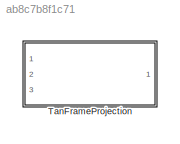
MODEL slx_ab8c7b8f1c71
KIND library
CONFIG AbsTol = auto
CONFIG EnableMultiTasking = off
CONFIG FixedStep = auto
CONFIG MaxStep = auto
CONFIG MinStep = auto
CONFIG RelTol = 1e-3
CONFIG SampleTimeConstraint = Unconstrained
CONFIG SolverName = VariableStepAuto
CONFIG StartTime = 0.0
CONFIG StopTime = 10.0
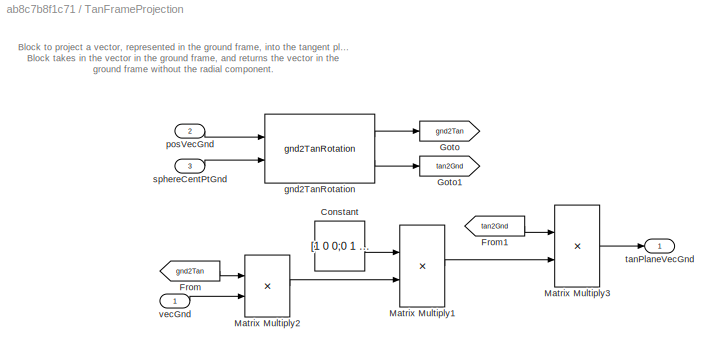
BLOCK [SubSystem] TanFrameProjection
  Ports = [3, 1]
  RequestExecContextInheritance = off
BLOCK [Constant] TanFrameProjection/Constant
  Value = [1 0 0;0 1 0;0 0 0]
BLOCK [From] TanFrameProjection/From
  GotoTag = gnd2Tan
BLOCK [From] TanFrameProjection/From1
  GotoTag = tan2Gnd
BLOCK [Goto] TanFrameProjection/Goto
  GotoTag = gnd2Tan
BLOCK [Goto] TanFrameProjection/Goto1
  GotoTag = tan2Gnd
BLOCK [Product] TanFrameProjection/Matrix Multiply1
  Multiplication = Matrix(*)
  Ports = [2, 1]
BLOCK [Product] TanFrameProjection/Matrix Multiply2
  Multiplication = Matrix(*)
  Ports = [2, 1]
BLOCK [Product] TanFrameProjection/Matrix Multiply3
  Multiplication = Matrix(*)
  Ports = [2, 1]
BLOCK [Reference] TanFrameProjection/gnd2TanRotation  REF=gnd2TanRotation_ul/gnd2TanRotation
  Ports = [2, 2]
  SourceBlock = gnd2TanRotation_ul/gnd2TanRotation
  SourceType = SubSystem
BLOCK [Inport] TanFrameProjection/posVecGnd
  Port = 2
BLOCK [Inport] TanFrameProjection/sphereCentPtGnd
  Port = 3
BLOCK [Outport] TanFrameProjection/tanPlaneVecGnd
  VectorParamsAs1DForOutWhenUnconnected = off
BLOCK [Inport] TanFrameProjection/vecGnd
ANNOTATION TanFrameProjection: Block to project a vector, represented in the ground frame, into the tangent plane. Block takes in the vector in the ground frame, and returns the vector in the ground frame without the radial component.
LINE TanFrameProjection/Constant:1 -> TanFrameProjection/Matrix Multiply1:1
LINE TanFrameProjection/From1:1 -> TanFrameProjection/Matrix Multiply3:1
LINE TanFrameProjection/From:1 -> TanFrameProjection/Matrix Multiply2:1
LINE TanFrameProjection/Matrix Multiply1:1 -> TanFrameProjection/Matrix Multiply3:2
LINE TanFrameProjection/Matrix Multiply2:1 -> TanFrameProjection/Matrix Multiply1:2
LINE TanFrameProjection/Matrix Multiply3:1 -> TanFrameProjection/tanPlaneVecGnd:1
LINE TanFrameProjection/gnd2TanRotation:1 -> TanFrameProjection/Goto:1
LINE TanFrameProjection/gnd2TanRotation:2 -> TanFrameProjection/Goto1:1
LINE TanFrameProjection/posVecGnd:1 -> TanFrameProjection/gnd2TanRotation:1
LINE TanFrameProjection/sphereCentPtGnd:1 -> TanFrameProjection/gnd2TanRotation:2
LINE TanFrameProjection/vecGnd:1 -> TanFrameProjection/Matrix Multiply2:2
